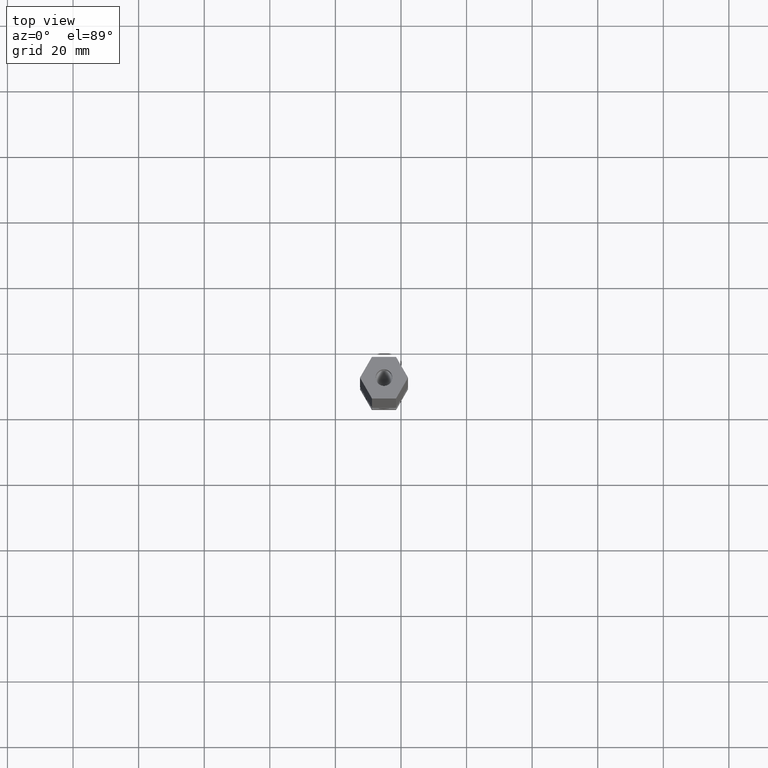
[diagram: clean part render]
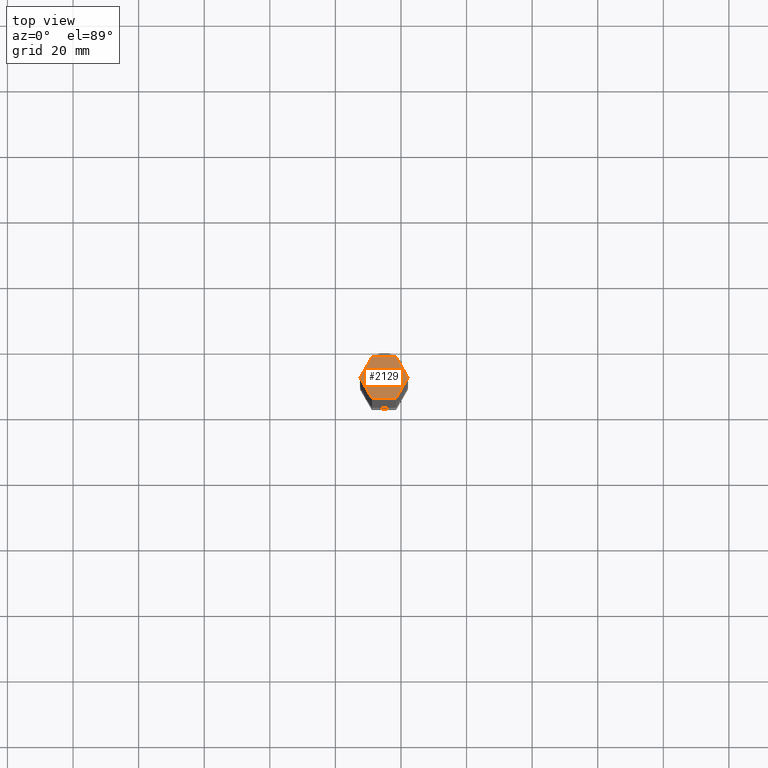
[diagram: same view with one face highlighted and labeled with its STEP entity id]
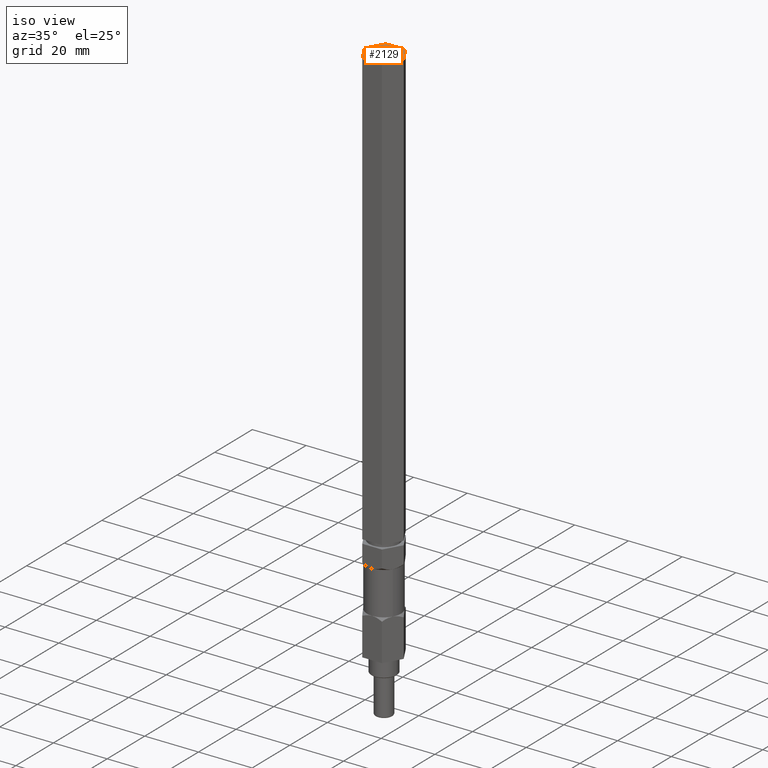
[diagram: same view with one face highlighted and labeled with its STEP entity id]
A machine part, top view. The second image highlights one B-rep face of the part: STEP entity #2129.
A second angle (iso view) of the same face is appended — the face is thin or edge-on in the first view.
In plain terms, the highlighted planar face has unit normal (0, -0, 1).
Its self-contained STEP definition (entity closure, byte-faithful):
#14 = LINE ( 'NONE', #778, #60 ) ;
#19 = DIRECTION ( 'NONE',  ( -0.0000000000000000000, -0.0000000000000000000, 1.000000000000000000 ) ) ;
#60 = VECTOR ( 'NONE', #1389, 1000.000000000000000 ) ;
#81 = DIRECTION ( 'NONE',  ( 0.4999999999999992228, 0.8660254037844390407, 0.0000000000000000000 ) ) ;
#90 = CARTESIAN_POINT ( 'NONE',  ( -48.84166809894153261, 22.55928631796896155, 108.1868199595754447 ) ) ;
#102 = LINE ( 'NONE', #1603, #1756 ) ;
#117 = ORIENTED_EDGE ( 'NONE', *, *, #1230, .T. ) ;
#146 = PLANE ( 'NONE',  #1057 ) ;
#230 = VERTEX_POINT ( 'NONE', #1707 ) ;
#256 = LINE ( 'NONE', #759, #884 ) ;
#265 = DIRECTION ( 'NONE',  ( -1.000000000000000000, -2.365849761790801543E-16, 0.0000000000000000000 ) ) ;
#321 = CIRCLE ( 'NONE', #1948, 2.552699999999990865 ) ;
#376 = VECTOR ( 'NONE', #1616, 1000.000000000000114 ) ;
#383 = VERTEX_POINT ( 'NONE', #1440 ) ;
#483 = LINE ( 'NONE', #1139, #2043 ) ;
#507 = DIRECTION ( 'NONE',  ( 0.0000000000000000000, -0.0000000000000000000, 1.000000000000000000 ) ) ;
#525 = VERTEX_POINT ( 'NONE', #1290 ) ;
#526 = VERTEX_POINT ( 'NONE', #1196 ) ;
#634 = ORIENTED_EDGE ( 'NONE', *, *, #1025, .T. ) ;
#665 = VECTOR ( 'NONE', #756, 1000.000000000000000 ) ;
#672 = DIRECTION ( 'NONE',  ( 1.000000000000000000, 0.0000000000000000000, 0.0000000000000000000 ) ) ;
#739 = EDGE_CURVE ( 'NONE', #230, #525, #102, .T. ) ;
#756 = DIRECTION ( 'NONE',  ( 1.000000000000000000, 1.182924880895401264E-16, 0.0000000000000000000 ) ) ;
#759 = CARTESIAN_POINT ( 'NONE',  ( -41.50931968023328977, 22.55928631796896155, 108.1868199595754447 ) ) ;
#778 = CARTESIAN_POINT ( 'NONE',  ( -37.84314547087917191, 28.90928631796896653, 108.1868199595754447 ) ) ;
#882 = EDGE_CURVE ( 'NONE', #1555, #383, #1286, .T. ) ;
#884 = VECTOR ( 'NONE', #81, 1000.000000000000227 ) ;
#900 = CARTESIAN_POINT ( 'NONE',  ( -41.50931968023328977, 22.55928631796896155, 108.1868199595754447 ) ) ;
#924 = VERTEX_POINT ( 'NONE', #900 ) ;
#970 = FACE_BOUND ( 'NONE', #1314, .T. ) ;
#1025 = EDGE_CURVE ( 'NONE', #924, #1827, #256, .T. ) ;
#1057 = AXIS2_PLACEMENT_3D ( 'NONE', #1989, #507, #1168 ) ;
#1137 = ORIENTED_EDGE ( 'NONE', *, *, #2037, .T. ) ;
#1139 = CARTESIAN_POINT ( 'NONE',  ( -48.84166809894153971, 35.25928631796895729, 108.1868199595754447 ) ) ;
#1168 = DIRECTION ( 'NONE',  ( 1.000000000000000000, 0.0000000000000000000, -0.0000000000000000000 ) ) ;
#1169 = ORIENTED_EDGE ( 'NONE', *, *, #2119, .T. ) ;
#1196 = CARTESIAN_POINT ( 'NONE',  ( -42.62279388958742032, 28.90928631796896298, 108.1868199595754447 ) ) ;
#1212 = ORIENTED_EDGE ( 'NONE', *, *, #882, .T. ) ;
#1230 = EDGE_CURVE ( 'NONE', #1827, #230, #14, .T. ) ;
#1234 = CARTESIAN_POINT ( 'NONE',  ( -52.50784230829565757, 28.90928631796895942, 108.1868199595754447 ) ) ;
#1267 = EDGE_LOOP ( 'NONE', ( #634, #117, #1704, #1169, #1212, #1137 ) ) ;
#1286 = LINE ( 'NONE', #2085, #376 ) ;
#1290 = CARTESIAN_POINT ( 'NONE',  ( -48.84166809894153971, 35.25928631796895729, 108.1868199595754447 ) ) ;
#1314 = EDGE_LOOP ( 'NONE', ( #1592 ) ) ;
#1389 = DIRECTION ( 'NONE',  ( -0.5000000000000001110, 0.8660254037844385966, 0.0000000000000000000 ) ) ;
#1440 = CARTESIAN_POINT ( 'NONE',  ( -48.84166809894153261, 22.55928631796896155, 108.1868199595754447 ) ) ;
#1482 = CARTESIAN_POINT ( 'NONE',  ( -37.84314547087917191, 28.90928631796896653, 108.1868199595754447 ) ) ;
#1503 = CARTESIAN_POINT ( 'NONE',  ( -45.17549388958741474, 28.90928631796896298, 108.1868199595754447 ) ) ;
#1555 = VERTEX_POINT ( 'NONE', #1234 ) ;
#1589 = LINE ( 'NONE', #90, #665 ) ;
#1592 = ORIENTED_EDGE ( 'NONE', *, *, #1868, .F. ) ;
#1603 = CARTESIAN_POINT ( 'NONE',  ( -41.50931968023328977, 35.25928631796896440, 108.1868199595754447 ) ) ;
#1616 = DIRECTION ( 'NONE',  ( 0.5000000000000003331, -0.8660254037844383745, 0.0000000000000000000 ) ) ;
#1637 = FACE_OUTER_BOUND ( 'NONE', #1267, .T. ) ;
#1704 = ORIENTED_EDGE ( 'NONE', *, *, #739, .T. ) ;
#1707 = CARTESIAN_POINT ( 'NONE',  ( -41.50931968023328977, 35.25928631796896440, 108.1868199595754447 ) ) ;
#1756 = VECTOR ( 'NONE', #265, 1000.000000000000000 ) ;
#1798 = DIRECTION ( 'NONE',  ( -0.4999999999999993894, -0.8660254037844389297, 0.0000000000000000000 ) ) ;
#1827 = VERTEX_POINT ( 'NONE', #1482 ) ;
#1868 = EDGE_CURVE ( 'NONE', #526, #526, #321, .T. ) ;
#1948 = AXIS2_PLACEMENT_3D ( 'NONE', #1503, #19, #672 ) ;
#1989 = CARTESIAN_POINT ( 'NONE',  ( -45.17549388958741474, 28.90928631796896298, 108.1868199595754447 ) ) ;
#2037 = EDGE_CURVE ( 'NONE', #383, #924, #1589, .T. ) ;
#2043 = VECTOR ( 'NONE', #1798, 1000.000000000000227 ) ;
#2085 = CARTESIAN_POINT ( 'NONE',  ( -52.50784230829565757, 28.90928631796895942, 108.1868199595754447 ) ) ;
#2119 = EDGE_CURVE ( 'NONE', #525, #1555, #483, .T. ) ;
#2129 = ADVANCED_FACE ( 'NONE', ( #970, #1637 ), #146, .T. ) ;